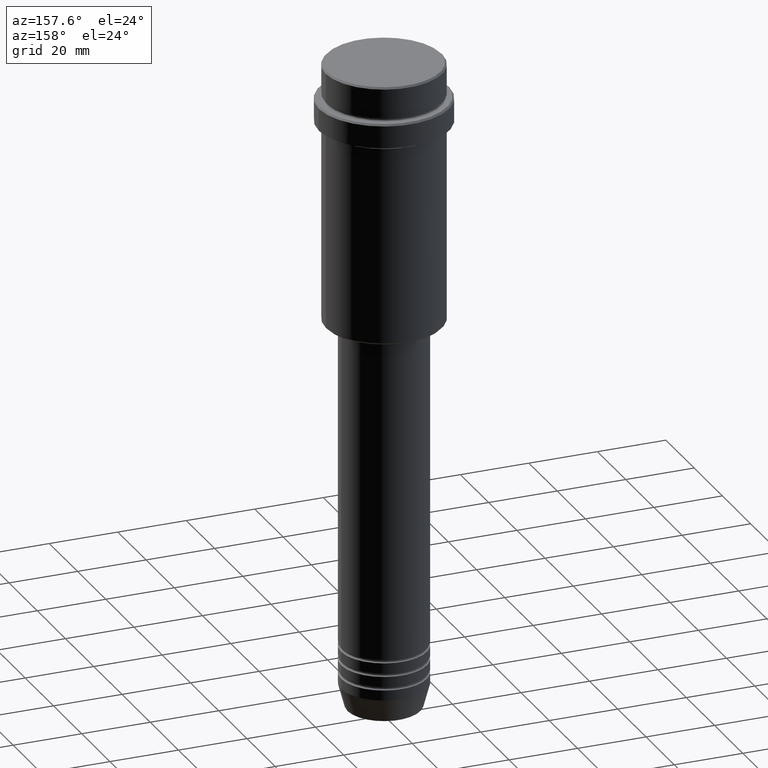
[diagram: clean part render]
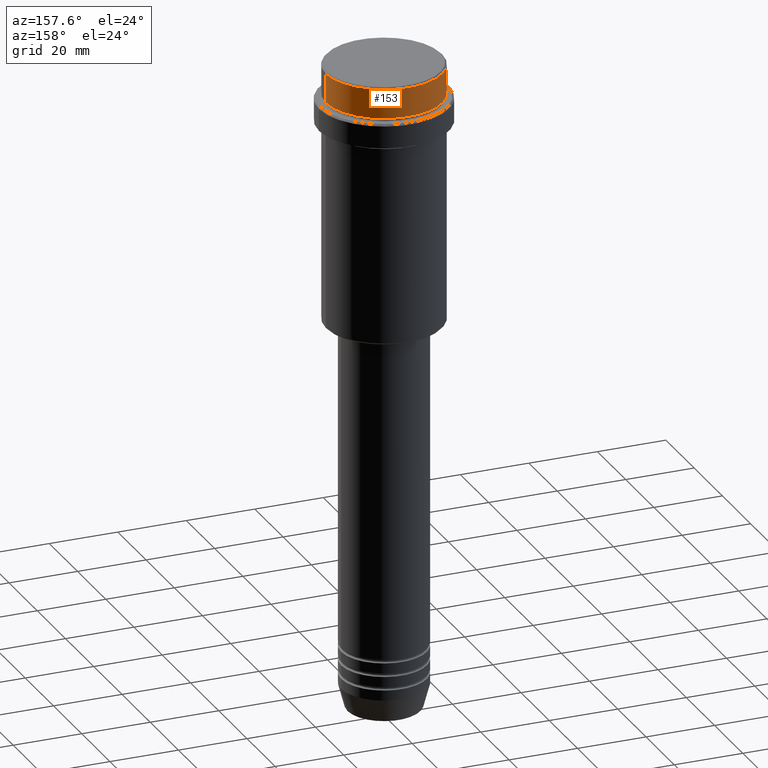
[diagram: same view with one face highlighted and labeled with its STEP entity id]
A machine part, auxiliary view. The second image highlights one B-rep face of the part: STEP entity #153.
In plain terms, the highlighted cylindrical surface (partial cylindrical patch) has radius 17 mm, axis along (-0, -0, 1).
Its self-contained STEP definition (entity closure, byte-faithful):
#7 = CARTESIAN_POINT ( 'NONE',  ( -16.99999999999997868, 2.081899558550498702E-15, -8.999999999999998224 ) ) ;
#35 = DIRECTION ( 'NONE',  ( 1.000000000000000000, 0.000000000000000000, 0.000000000000000000 ) ) ;
#68 = CIRCLE ( 'NONE', #93, 16.99999999999997868 ) ;
#93 = AXIS2_PLACEMENT_3D ( 'NONE', #332, #1189, #224 ) ;
#108 = CYLINDRICAL_SURFACE ( 'NONE', #935, 16.99999999999998934 ) ;
#133 = VECTOR ( 'NONE', #929, 1000.000000000000000 ) ;
#153 = ADVANCED_FACE ( 'NONE', ( #329 ), #108, .T. ) ;
#159 = VERTEX_POINT ( 'NONE', #7 ) ;
#195 = CARTESIAN_POINT ( 'NONE',  ( 16.99999999999998934, 0.000000000000000000, -0.4999999999999865663 ) ) ;
#223 = ORIENTED_EDGE ( 'NONE', *, *, #1058, .T. ) ;
#224 = DIRECTION ( 'NONE',  ( 1.000000000000000000, 0.000000000000000000, 0.000000000000000000 ) ) ;
#228 = VERTEX_POINT ( 'NONE', #640 ) ;
#250 = CIRCLE ( 'NONE', #498, 16.99999999999998934 ) ;
#285 = EDGE_LOOP ( 'NONE', ( #659, #650, #223, #1250 ) ) ;
#306 = EDGE_CURVE ( 'NONE', #228, #920, #471, .T. ) ;
#329 = FACE_OUTER_BOUND ( 'NONE', #285, .T. ) ;
#332 = CARTESIAN_POINT ( 'NONE',  ( 0.000000000000000000, 0.000000000000000000, -8.999999999999998224 ) ) ;
#372 = EDGE_CURVE ( 'NONE', #159, #1267, #1259, .T. ) ;
#399 = CARTESIAN_POINT ( 'NONE',  ( -16.99999999999998934, 2.081899558550499491E-15, 0.000000000000000000 ) ) ;
#456 = DIRECTION ( 'NONE',  ( -0.000000000000000000, -0.000000000000000000, 1.000000000000000000 ) ) ;
#471 = LINE ( 'NONE', #481, #1074 ) ;
#481 = CARTESIAN_POINT ( 'NONE',  ( 16.99999999999998934, 0.000000000000000000, 0.000000000000000000 ) ) ;
#498 = AXIS2_PLACEMENT_3D ( 'NONE', #967, #664, #35 ) ;
#551 = CARTESIAN_POINT ( 'NONE',  ( 0.000000000000000000, 0.000000000000000000, 0.000000000000000000 ) ) ;
#588 = EDGE_CURVE ( 'NONE', #228, #159, #68, .T. ) ;
#640 = CARTESIAN_POINT ( 'NONE',  ( 16.99999999999997868, 0.000000000000000000, -8.999999999999998224 ) ) ;
#650 = ORIENTED_EDGE ( 'NONE', *, *, #372, .T. ) ;
#659 = ORIENTED_EDGE ( 'NONE', *, *, #588, .T. ) ;
#664 = DIRECTION ( 'NONE',  ( 0.000000000000000000, 0.000000000000000000, -1.000000000000000000 ) ) ;
#764 = DIRECTION ( 'NONE',  ( 1.000000000000000000, 0.000000000000000000, 0.000000000000000000 ) ) ;
#920 = VERTEX_POINT ( 'NONE', #195 ) ;
#929 = DIRECTION ( 'NONE',  ( -0.000000000000000000, -0.000000000000000000, 1.000000000000000000 ) ) ;
#935 = AXIS2_PLACEMENT_3D ( 'NONE', #551, #456, #764 ) ;
#967 = CARTESIAN_POINT ( 'NONE',  ( 0.000000000000000000, 0.000000000000000000, -0.4999999999999865663 ) ) ;
#1014 = CARTESIAN_POINT ( 'NONE',  ( -16.99999999999998934, 2.081899558550499491E-15, -0.4999999999999865663 ) ) ;
#1058 = EDGE_CURVE ( 'NONE', #1267, #920, #250, .T. ) ;
#1074 = VECTOR ( 'NONE', #1345, 1000.000000000000000 ) ;
#1189 = DIRECTION ( 'NONE',  ( -0.000000000000000000, -0.000000000000000000, 1.000000000000000000 ) ) ;
#1250 = ORIENTED_EDGE ( 'NONE', *, *, #306, .F. ) ;
#1259 = LINE ( 'NONE', #399, #133 ) ;
#1267 = VERTEX_POINT ( 'NONE', #1014 ) ;
#1345 = DIRECTION ( 'NONE',  ( -0.000000000000000000, -0.000000000000000000, 1.000000000000000000 ) ) ;